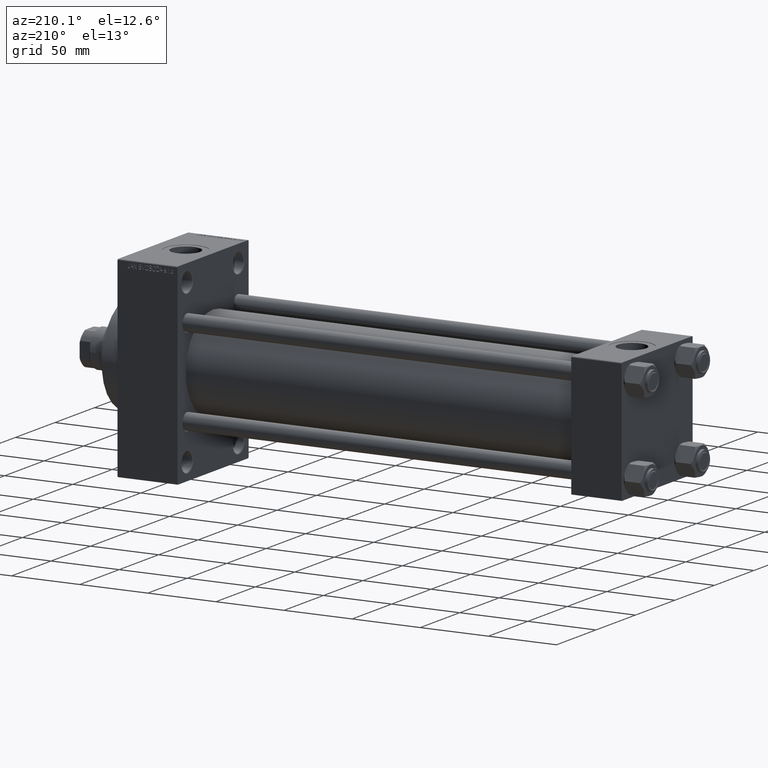
[diagram: clean part render]
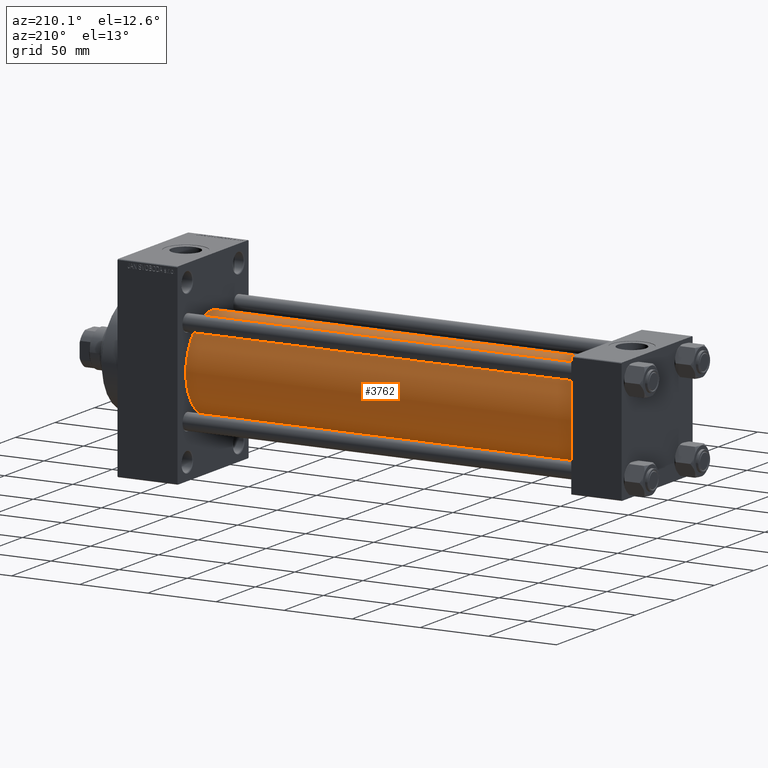
[diagram: same view with one face highlighted and labeled with its STEP entity id]
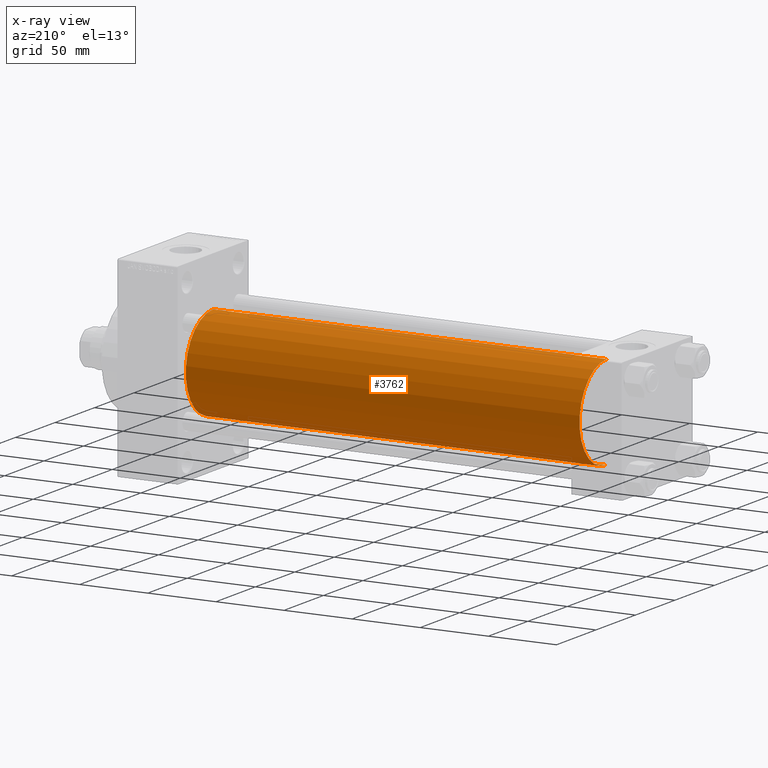
[diagram: x-ray of the same camera — body ghosted, the highlighted face saturated]
A machine part, auxiliary view. The second image highlights one B-rep face of the part: STEP entity #3762.
The next image is the same camera in x-ray: the body ghosted, the highlighted face saturated — about 0% of this face is hidden behind the body in this view.
In plain terms, the highlighted cylindrical surface (partial cylindrical patch) has radius 34.5 mm, axis along (-1, -0, -0).
Its self-contained STEP definition (entity closure, byte-faithful):
#3014 = VECTOR ( 'NONE', #35671, 1000.000000000000000 ) ;
#3762 = ADVANCED_FACE ( 'NONE', ( #11761 ), #26360, .T. ) ;
#4019 = VERTEX_POINT ( 'NONE', #41806 ) ;
#4538 = DIRECTION ( 'NONE',  ( 0.000000000000000000, 0.000000000000000000, 1.000000000000000000 ) ) ;
#4706 = AXIS2_PLACEMENT_3D ( 'NONE', #37621, #19411, #4538 ) ;
#5419 = CARTESIAN_POINT ( 'NONE',  ( 325.9999999999999432, -2.602085213965210642E-15, 0.000000000000000000 ) ) ;
#5887 = DIRECTION ( 'NONE',  ( 1.000000000000000000, 0.000000000000000000, 0.000000000000000000 ) ) ;
#7519 = EDGE_LOOP ( 'NONE', ( #9924, #17707, #40188, #11814 ) ) ;
#7565 = AXIS2_PLACEMENT_3D ( 'NONE', #5419, #5887, #42310 ) ;
#8237 = CARTESIAN_POINT ( 'NONE',  ( 325.9999999999999432, -2.602085213965210642E-15, 34.50000000000000000 ) ) ;
#9924 = ORIENTED_EDGE ( 'NONE', *, *, #18244, .F. ) ;
#11761 = FACE_OUTER_BOUND ( 'NONE', #7519, .T. ) ;
#11814 = ORIENTED_EDGE ( 'NONE', *, *, #34293, .F. ) ;
#12728 = CIRCLE ( 'NONE', #32614, 34.50000000000000000 ) ;
#13641 = CARTESIAN_POINT ( 'NONE',  ( 325.9999999999999432, 1.622946243093158675E-15, -34.50000000000000000 ) ) ;
#17222 = VERTEX_POINT ( 'NONE', #8237 ) ;
#17707 = ORIENTED_EDGE ( 'NONE', *, *, #18995, .T. ) ;
#18244 = EDGE_CURVE ( 'NONE', #45956, #17222, #24414, .T. ) ;
#18887 = CARTESIAN_POINT ( 'NONE',  ( 325.9999999999999432, 1.622946243093158675E-15, -34.50000000000000000 ) ) ;
#18995 = EDGE_CURVE ( 'NONE', #45956, #34838, #20815, .T. ) ;
#19411 = DIRECTION ( 'NONE',  ( -1.000000000000000000, -0.000000000000000000, -0.000000000000000000 ) ) ;
#19560 = VECTOR ( 'NONE', #26751, 1000.000000000000000 ) ;
#19596 = CARTESIAN_POINT ( 'NONE',  ( 36.99999999999997868, -2.602085213965210642E-15, 0.000000000000000000 ) ) ;
#20815 = LINE ( 'NONE', #13641, #3014 ) ;
#22104 = CARTESIAN_POINT ( 'NONE',  ( 36.99999999999997868, 1.622946243093158675E-15, -34.50000000000000000 ) ) ;
#22918 = LINE ( 'NONE', #23391, #19560 ) ;
#23391 = CARTESIAN_POINT ( 'NONE',  ( 325.9999999999999432, -2.602085213965210642E-15, 34.50000000000000000 ) ) ;
#24414 = CIRCLE ( 'NONE', #7565, 34.50000000000000000 ) ;
#26360 = CYLINDRICAL_SURFACE ( 'NONE', #4706, 34.50000000000000000 ) ;
#26751 = DIRECTION ( 'NONE',  ( -1.000000000000000000, -0.000000000000000000, -0.000000000000000000 ) ) ;
#32614 = AXIS2_PLACEMENT_3D ( 'NONE', #19596, #34853, #35338 ) ;
#34293 = EDGE_CURVE ( 'NONE', #17222, #4019, #22918, .T. ) ;
#34838 = VERTEX_POINT ( 'NONE', #22104 ) ;
#34853 = DIRECTION ( 'NONE',  ( 1.000000000000000000, -0.000000000000000000, 0.000000000000000000 ) ) ;
#35338 = DIRECTION ( 'NONE',  ( 0.000000000000000000, 0.000000000000000000, 1.000000000000000000 ) ) ;
#35671 = DIRECTION ( 'NONE',  ( -1.000000000000000000, -0.000000000000000000, -0.000000000000000000 ) ) ;
#37621 = CARTESIAN_POINT ( 'NONE',  ( 325.9999999999999432, -2.602085213965210642E-15, 0.000000000000000000 ) ) ;
#37991 = EDGE_CURVE ( 'NONE', #34838, #4019, #12728, .T. ) ;
#40188 = ORIENTED_EDGE ( 'NONE', *, *, #37991, .T. ) ;
#41806 = CARTESIAN_POINT ( 'NONE',  ( 36.99999999999997868, -2.602085213965210642E-15, 34.50000000000000000 ) ) ;
#42310 = DIRECTION ( 'NONE',  ( 0.000000000000000000, 0.000000000000000000, -1.000000000000000000 ) ) ;
#45956 = VERTEX_POINT ( 'NONE', #18887 ) ;